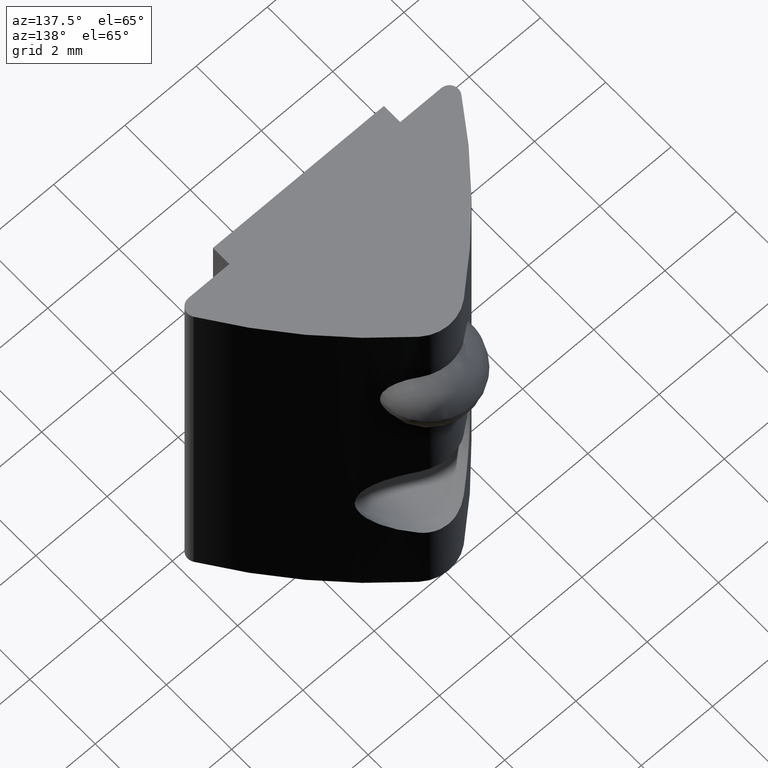
[diagram: clean part render]
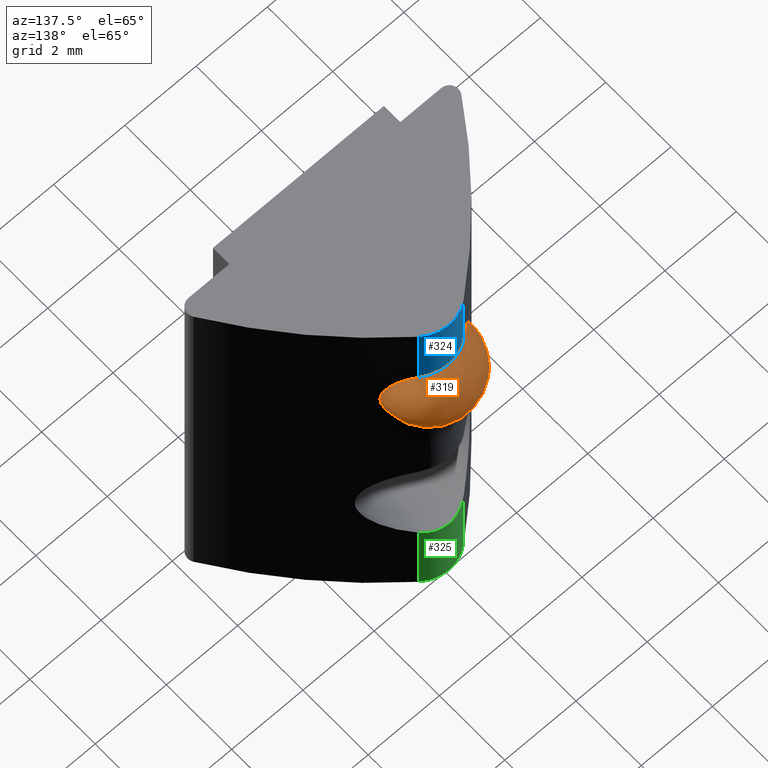
[diagram: same view with three faces highlighted in distinct colors, each labeled with its STEP entity id]
A machine part, auxiliary view with three faces highlighted in distinct colors.
Their STEP definitions:

[orange] entity #319 — the highlighted spherical surface has radius 1.25 mm.
#79=FACE_BOUND('',#109,.T.);
#81=B_SPLINE_CURVE_WITH_KNOTS('',3,(#476,#477,#478,#479,#480,#481,#482,
#483,#484,#485,#486,#487,#488,#489,#490,#491,#492,#493),.UNSPECIFIED.,.F.,
 .F.,(4,2,2,2,2,2,2,2,4),(0.182968456243765,0.210851468543244,0.243239566367713,
0.279251537174953,0.315263507982192,0.351275478789432,0.387287449596671,
0.41967554742114,0.447558559720619),.UNSPECIFIED.);
#82=B_SPLINE_CURVE_WITH_KNOTS('',3,(#495,#496,#497,#498,#499,#500,#501,
#502,#503,#504,#505,#506,#507,#508),.UNSPECIFIED.,.F.,.F.,(4,2,2,2,2,2,
4),(0.177323095739884,0.193497467225048,0.218225435560753,0.242953403896458,
0.267681372232164,0.292409340567869,0.308583712053033),.UNSPECIFIED.);
#83=B_SPLINE_CURVE_WITH_KNOTS('',3,(#510,#511,#512,#513,#514,#515,#516,
#517,#518,#519,#520,#521,#522,#523,#524,#525,#526,#527,#528),
 .UNSPECIFIED.,.F.,.F.,(4,2,2,2,3,2,2,2,4),(-0.132295051738427,-0.104412039438947,
-0.0720239416144781,-0.0360119708072391,0.,0.036011970807239,0.0720239416144781,
0.104412039438947,0.132295051738427),.UNSPECIFIED.);
#84=B_SPLINE_CURVE_WITH_KNOTS('',3,(#529,#530,#531,#532,#533,#534,#535,
#536,#537,#538,#539,#540,#541,#542),.UNSPECIFIED.,.F.,.F.,(4,2,2,2,2,2,
4),(0.6632299035328,0.679404275017964,0.704132243353669,0.728860211689375,
0.75358818002508,0.778316148360785,0.794490519845949),.UNSPECIFIED.);
#92=FACE_OUTER_BOUND('',#108,.T.);
#108=EDGE_LOOP('',(#220,#221));
#109=EDGE_LOOP('',(#222,#223,#224,#225));
#126=CIRCLE('',#359,1.25);
#138=VERTEX_POINT('',#471);
#139=VERTEX_POINT('',#472);
#140=VERTEX_POINT('',#474);
#141=VERTEX_POINT('',#475);
#142=VERTEX_POINT('',#494);
#143=VERTEX_POINT('',#509);
#172=EDGE_CURVE('',#138,#139,#126,.T.);
#173=EDGE_CURVE('',#140,#141,#81,.T.);
#174=EDGE_CURVE('',#142,#140,#82,.T.);
#175=EDGE_CURVE('',#143,#142,#83,.T.);
#176=EDGE_CURVE('',#141,#143,#84,.T.);
#220=ORIENTED_EDGE('',*,*,#172,.T.);
#221=ORIENTED_EDGE('',*,*,#172,.F.);
#222=ORIENTED_EDGE('',*,*,#173,.F.);
#223=ORIENTED_EDGE('',*,*,#174,.F.);
#224=ORIENTED_EDGE('',*,*,#175,.F.);
#225=ORIENTED_EDGE('',*,*,#176,.F.);
#316=SPHERICAL_SURFACE('',#358,1.25);
#319=ADVANCED_FACE('',(#92,#79),#316,.T.);
#358=AXIS2_PLACEMENT_3D('',#470,#388,#389);
#359=AXIS2_PLACEMENT_3D('',#473,#390,#391);
#388=DIRECTION('center_axis',(1.,0.,0.));
#389=DIRECTION('ref_axis',(0.,-1.,0.));
#390=DIRECTION('center_axis',(0.,0.,1.));
#391=DIRECTION('ref_axis',(0.,1.,0.));
#470=CARTESIAN_POINT('Origin',(0.,3.5,9.));
#471=CARTESIAN_POINT('',(1.25,3.5,9.));
#472=CARTESIAN_POINT('',(-1.25,3.5,9.));
#473=CARTESIAN_POINT('Origin',(0.,3.5,9.));
#474=CARTESIAN_POINT('',(0.631143439405981,3.87566613880895,7.98854910596354));
#475=CARTESIAN_POINT('',(0.631143439405981,3.87566613880895,10.0114508940365));
#476=CARTESIAN_POINT('Ctrl Pts',(0.631143439405981,3.87566613880895,7.98854910596354));
#477=CARTESIAN_POINT('Ctrl Pts',(0.706906064844613,3.81401966282485,8.0129285301541));
#478=CARTESIAN_POINT('Ctrl Pts',(0.779525979046031,3.75362472286554,8.05176362716048));
#479=CARTESIAN_POINT('Ctrl Pts',(0.912982315815267,3.64093699186633,8.15102680410987));
#480=CARTESIAN_POINT('Ctrl Pts',(0.989434669996827,3.57495232534953,8.23217409867822));
#481=CARTESIAN_POINT('Ctrl Pts',(1.10392184773954,3.47473870952647,8.40197993384423));
#482=CARTESIAN_POINT('Ctrl Pts',(1.15588616264958,3.42835364541138,8.51245620052577));
#483=CARTESIAN_POINT('Ctrl Pts',(1.22448257068173,3.36670895791017,8.75144234123317));
#484=CARTESIAN_POINT('Ctrl Pts',(1.24115006546628,3.3515193110433,8.8799600973092));
#485=CARTESIAN_POINT('Ctrl Pts',(1.24115006546628,3.3515193110433,9.1200399026908));
#486=CARTESIAN_POINT('Ctrl Pts',(1.22448257068173,3.36670895791017,9.24855765876683));
#487=CARTESIAN_POINT('Ctrl Pts',(1.15588616264958,3.42835364541138,9.48754379947423));
#488=CARTESIAN_POINT('Ctrl Pts',(1.10392184773954,3.47473870952647,9.59802006615577));
#489=CARTESIAN_POINT('Ctrl Pts',(0.989434669996827,3.57495232534953,9.76782590132178));
#490=CARTESIAN_POINT('Ctrl Pts',(0.912982315815267,3.64093699186633,9.84897319589013));
#491=CARTESIAN_POINT('Ctrl Pts',(0.779525979046031,3.75362472286554,9.94823637283952));
#492=CARTESIAN_POINT('Ctrl Pts',(0.706906064844613,3.81401966282485,9.9870714698459));
#493=CARTESIAN_POINT('Ctrl Pts',(0.631143439405981,3.87566613880895,10.0114508940365));
#494=CARTESIAN_POINT('',(-0.631143439405981,3.87566613880895,7.98854910596354));
#495=CARTESIAN_POINT('Ctrl Pts',(-0.631143439405981,3.87566613880895,7.98854910596353));
#496=CARTESIAN_POINT('Ctrl Pts',(-0.587727022182322,3.91099317646371,7.97457826946992));
#497=CARTESIAN_POINT('Ctrl Pts',(-0.541723086428686,3.94222462984948,7.96251252758535));
#498=CARTESIAN_POINT('Ctrl Pts',(-0.425378959386678,4.00863185926687,7.93715452175411));
#499=CARTESIAN_POINT('Ctrl Pts',(-0.343240498544282,4.04342928759003,7.92421447322531));
#500=CARTESIAN_POINT('Ctrl Pts',(-0.171766408803164,4.08912546852542,7.90735577006466));
#501=CARTESIAN_POINT('Ctrl Pts',(-0.0824265611190177,4.1,7.90341439002693));
#502=CARTESIAN_POINT('Ctrl Pts',(0.0824265611190179,4.1,7.90341439002693));
#503=CARTESIAN_POINT('Ctrl Pts',(0.171766408803164,4.08912546852542,7.90735577006466));
#504=CARTESIAN_POINT('Ctrl Pts',(0.343240498544282,4.04342928759003,7.92421447322531));
#505=CARTESIAN_POINT('Ctrl Pts',(0.425378959386678,4.00863185926687,7.93715452175411));
#506=CARTESIAN_POINT('Ctrl Pts',(0.541723086428685,3.94222462984948,7.96251252758535));
#507=CARTESIAN_POINT('Ctrl Pts',(0.587727022182322,3.91099317646371,7.97457826946992));
#508=CARTESIAN_POINT('Ctrl Pts',(0.631143439405981,3.87566613880895,7.98854910596353));
#509=CARTESIAN_POINT('',(-0.631143439405981,3.87566613880895,10.0114508940365));
#510=CARTESIAN_POINT('Ctrl Pts',(-0.631143439405981,3.87566613880895,10.0114508940365));
#511=CARTESIAN_POINT('Ctrl Pts',(-0.706906064844615,3.81401966282485,9.9870714698459));
#512=CARTESIAN_POINT('Ctrl Pts',(-0.779525979046037,3.75362472286554,9.94823637283951));
#513=CARTESIAN_POINT('Ctrl Pts',(-0.912982315815274,3.64093699186633,9.84897319589012));
#514=CARTESIAN_POINT('Ctrl Pts',(-0.989434669996833,3.57495232534953,9.76782590132177));
#515=CARTESIAN_POINT('Ctrl Pts',(-1.10392184773954,3.47473870952647,9.59802006615577));
#516=CARTESIAN_POINT('Ctrl Pts',(-1.15588616264958,3.42835364541137,9.48754379947423));
#517=CARTESIAN_POINT('Ctrl Pts',(-1.22448257068173,3.36670895791016,9.24855765876683));
#518=CARTESIAN_POINT('Ctrl Pts',(-1.24115006546628,3.3515193110433,9.1200399026908));
#519=CARTESIAN_POINT('Ctrl Pts',(-1.24115006546628,3.3515193110433,9.));
#520=CARTESIAN_POINT('Ctrl Pts',(-1.24115006546628,3.3515193110433,8.8799600973092));
#521=CARTESIAN_POINT('Ctrl Pts',(-1.22448257068173,3.36670895791016,8.75144234123317));
#522=CARTESIAN_POINT('Ctrl Pts',(-1.15588616264958,3.42835364541137,8.51245620052577));
#523=CARTESIAN_POINT('Ctrl Pts',(-1.10392184773954,3.47473870952647,8.40197993384423));
#524=CARTESIAN_POINT('Ctrl Pts',(-0.989434669996833,3.57495232534953,8.23217409867823));
#525=CARTESIAN_POINT('Ctrl Pts',(-0.912982315815274,3.64093699186633,8.15102680410988));
#526=CARTESIAN_POINT('Ctrl Pts',(-0.779525979046037,3.75362472286554,8.05176362716048));
#527=CARTESIAN_POINT('Ctrl Pts',(-0.706906064844615,3.81401966282485,8.0129285301541));
#528=CARTESIAN_POINT('Ctrl Pts',(-0.631143439405981,3.87566613880895,7.98854910596354));
#529=CARTESIAN_POINT('Ctrl Pts',(0.631143439405981,3.87566613880895,10.0114508940365));
#530=CARTESIAN_POINT('Ctrl Pts',(0.587727022182323,3.91099317646371,10.0254217305301));
#531=CARTESIAN_POINT('Ctrl Pts',(0.541723086428686,3.94222462984948,10.0374874724146));
#532=CARTESIAN_POINT('Ctrl Pts',(0.425378959386678,4.00863185926687,10.0628454782459));
#533=CARTESIAN_POINT('Ctrl Pts',(0.343240498544283,4.04342928759003,10.0757855267747));
#534=CARTESIAN_POINT('Ctrl Pts',(0.171766408803164,4.08912546852542,10.0926442299353));
#535=CARTESIAN_POINT('Ctrl Pts',(0.0824265611190179,4.1,10.0965856099731));
#536=CARTESIAN_POINT('Ctrl Pts',(-0.0824265611190176,4.1,10.0965856099731));
#537=CARTESIAN_POINT('Ctrl Pts',(-0.171766408803164,4.08912546852542,10.0926442299353));
#538=CARTESIAN_POINT('Ctrl Pts',(-0.343240498544282,4.04342928759003,10.0757855267747));
#539=CARTESIAN_POINT('Ctrl Pts',(-0.425378959386678,4.00863185926687,10.0628454782459));
#540=CARTESIAN_POINT('Ctrl Pts',(-0.541723086428686,3.94222462984948,10.0374874724146));
#541=CARTESIAN_POINT('Ctrl Pts',(-0.587727022182323,3.91099317646371,10.0254217305301));
#542=CARTESIAN_POINT('Ctrl Pts',(-0.631143439405981,3.87566613880895,10.0114508940365));

[blue] entity #324 — the highlighted cylindrical surface (partial cylindrical patch) has radius 1 mm, axis along (0, 0, 1).
#24=LINE('',#574,#49);
#27=LINE('',#632,#52);
#49=VECTOR('',#401,10.);
#52=VECTOR('',#412,10.);
#75=CYLINDRICAL_SURFACE('',#369,1.);
#84=B_SPLINE_CURVE_WITH_KNOTS('',3,(#529,#530,#531,#532,#533,#534,#535,
#536,#537,#538,#539,#540,#541,#542),.UNSPECIFIED.,.F.,.F.,(4,2,2,2,2,2,
4),(0.6632299035328,0.679404275017964,0.704132243353669,0.728860211689375,
0.75358818002508,0.778316148360785,0.794490519845949),.UNSPECIFIED.);
#97=FACE_OUTER_BOUND('',#114,.T.);
#114=EDGE_LOOP('',(#258,#259,#260,#261));
#132=CIRCLE('',#370,1.);
#141=VERTEX_POINT('',#475);
#143=VERTEX_POINT('',#509);
#149=VERTEX_POINT('',#572);
#156=VERTEX_POINT('',#631);
#176=EDGE_CURVE('',#141,#143,#84,.T.);
#183=EDGE_CURVE('',#143,#149,#24,.T.);
#193=EDGE_CURVE('',#141,#156,#27,.T.);
#198=EDGE_CURVE('',#156,#149,#132,.T.);
#258=ORIENTED_EDGE('',*,*,#176,.T.);
#259=ORIENTED_EDGE('',*,*,#183,.T.);
#260=ORIENTED_EDGE('',*,*,#198,.F.);
#261=ORIENTED_EDGE('',*,*,#193,.F.);
#324=ADVANCED_FACE('',(#97),#75,.T.);
#369=AXIS2_PLACEMENT_3D('',#640,#419,#420);
#370=AXIS2_PLACEMENT_3D('',#641,#421,#422);
#401=DIRECTION('',(0.,0.,1.));
#412=DIRECTION('',(0.,0.,1.));
#419=DIRECTION('center_axis',(0.,0.,1.));
#420=DIRECTION('ref_axis',(-0.63114343940598,-0.775666138808953,0.));
#421=DIRECTION('center_axis',(0.,0.,1.));
#422=DIRECTION('ref_axis',(-0.63114343940598,-0.775666138808953,0.));
#475=CARTESIAN_POINT('',(0.631143439405981,3.87566613880895,10.0114508940365));
#509=CARTESIAN_POINT('',(-0.631143439405981,3.87566613880895,10.0114508940365));
#529=CARTESIAN_POINT('Ctrl Pts',(0.631143439405981,3.87566613880895,10.0114508940365));
#530=CARTESIAN_POINT('Ctrl Pts',(0.587727022182323,3.91099317646371,10.0254217305301));
#531=CARTESIAN_POINT('Ctrl Pts',(0.541723086428686,3.94222462984948,10.0374874724146));
#532=CARTESIAN_POINT('Ctrl Pts',(0.425378959386678,4.00863185926687,10.0628454782459));
#533=CARTESIAN_POINT('Ctrl Pts',(0.343240498544283,4.04342928759003,10.0757855267747));
#534=CARTESIAN_POINT('Ctrl Pts',(0.171766408803164,4.08912546852542,10.0926442299353));
#535=CARTESIAN_POINT('Ctrl Pts',(0.0824265611190179,4.1,10.0965856099731));
#536=CARTESIAN_POINT('Ctrl Pts',(-0.0824265611190176,4.1,10.0965856099731));
#537=CARTESIAN_POINT('Ctrl Pts',(-0.171766408803164,4.08912546852542,10.0926442299353));
#538=CARTESIAN_POINT('Ctrl Pts',(-0.343240498544282,4.04342928759003,10.0757855267747));
#539=CARTESIAN_POINT('Ctrl Pts',(-0.425378959386678,4.00863185926687,10.0628454782459));
#540=CARTESIAN_POINT('Ctrl Pts',(-0.541723086428686,3.94222462984948,10.0374874724146));
#541=CARTESIAN_POINT('Ctrl Pts',(-0.587727022182323,3.91099317646371,10.0254217305301));
#542=CARTESIAN_POINT('Ctrl Pts',(-0.631143439405981,3.87566613880895,10.0114508940365));
#572=CARTESIAN_POINT('',(-0.631143439405981,3.87566613880895,12.));
#574=CARTESIAN_POINT('',(-0.631143439405981,3.87566613880895,0.));
#631=CARTESIAN_POINT('',(0.631143439405981,3.87566613880895,12.));
#632=CARTESIAN_POINT('',(0.631143439405981,3.87566613880895,0.));
#640=CARTESIAN_POINT('Origin',(0.,3.1,0.));
#641=CARTESIAN_POINT('Origin',(0.,3.1,12.));

[green] entity #325 — the highlighted cylindrical surface (partial cylindrical patch) has radius 1 mm, axis along (0, 0, 1).
#22=LINE('',#567,#47);
#29=LINE('',#639,#54);
#47=VECTOR('',#395,10.);
#54=VECTOR('',#418,10.);
#76=CYLINDRICAL_SURFACE('',#371,1.);
#90=B_SPLINE_CURVE_WITH_KNOTS('',3,(#618,#619,#620,#621,#622,#623),
 .UNSPECIFIED.,.F.,.F.,(4,2,4),(0.467370269195606,0.506173086440038,0.53436145946202),
 .UNSPECIFIED.);
#91=B_SPLINE_CURVE_WITH_KNOTS('',3,(#624,#625,#626,#627,#628,#629),
 .UNSPECIFIED.,.F.,.F.,(4,2,4),(0.400379078929193,0.428567451951175,0.467370269195606),
 .UNSPECIFIED.);
#98=FACE_OUTER_BOUND('',#115,.T.);
#115=EDGE_LOOP('',(#262,#263,#264,#265,#266));
#133=CIRCLE('',#372,1.);
#145=VERTEX_POINT('',#546);
#146=VERTEX_POINT('',#566);
#154=VERTEX_POINT('',#606);
#155=VERTEX_POINT('',#617);
#159=VERTEX_POINT('',#637);
#179=EDGE_CURVE('',#146,#145,#22,.T.);
#191=EDGE_CURVE('',#155,#154,#90,.T.);
#192=EDGE_CURVE('',#145,#155,#91,.T.);
#197=EDGE_CURVE('',#159,#154,#29,.T.);
#199=EDGE_CURVE('',#146,#159,#133,.T.);
#262=ORIENTED_EDGE('',*,*,#192,.T.);
#263=ORIENTED_EDGE('',*,*,#191,.T.);
#264=ORIENTED_EDGE('',*,*,#197,.F.);
#265=ORIENTED_EDGE('',*,*,#199,.F.);
#266=ORIENTED_EDGE('',*,*,#179,.T.);
#325=ADVANCED_FACE('',(#98),#76,.T.);
#371=AXIS2_PLACEMENT_3D('',#642,#423,#424);
#372=AXIS2_PLACEMENT_3D('',#643,#425,#426);
#395=DIRECTION('',(0.,0.,1.));
#418=DIRECTION('',(0.,0.,1.));
#423=DIRECTION('center_axis',(0.,0.,1.));
#424=DIRECTION('ref_axis',(-0.63114343940598,-0.775666138808953,0.));
#425=DIRECTION('center_axis',(0.,0.,-1.));
#426=DIRECTION('ref_axis',(-0.63114343940598,-0.775666138808953,0.));
#546=CARTESIAN_POINT('',(-0.631143439405981,3.87566613880895,2.40691629206706));
#566=CARTESIAN_POINT('',(-0.631143439405981,3.87566613880895,0.));
#567=CARTESIAN_POINT('',(-0.631143439405981,3.87566613880895,0.));
#606=CARTESIAN_POINT('',(0.631143439405981,3.87566613880895,2.40691629206706));
#617=CARTESIAN_POINT('',(0.,4.1,2.279));
#618=CARTESIAN_POINT('Ctrl Pts',(1.04083408558608E-16,4.1,2.279));
#619=CARTESIAN_POINT('Ctrl Pts',(0.129342724148104,4.1,2.279));
#620=CARTESIAN_POINT('Ctrl Pts',(0.264967094338513,4.07341093913773,2.29581235875653));
#621=CARTESIAN_POINT('Ctrl Pts',(0.476906400364673,3.98426258594251,2.34802164018412));
#622=CARTESIAN_POINT('Ctrl Pts',(0.559633702500536,3.93385212765568,2.37668831418362));
#623=CARTESIAN_POINT('Ctrl Pts',(0.63114343940598,3.87566613880895,2.40691629206706));
#624=CARTESIAN_POINT('Ctrl Pts',(-0.63114343940598,3.87566613880895,2.40691629206706));
#625=CARTESIAN_POINT('Ctrl Pts',(-0.559633702500536,3.93385212765568,2.37668831418362));
#626=CARTESIAN_POINT('Ctrl Pts',(-0.476906400364672,3.98426258594251,2.34802164018412));
#627=CARTESIAN_POINT('Ctrl Pts',(-0.264967094338512,4.07341093913773,2.29581235875653));
#628=CARTESIAN_POINT('Ctrl Pts',(-0.129342724148104,4.1,2.279));
#629=CARTESIAN_POINT('Ctrl Pts',(1.38777878078145E-16,4.1,2.279));
#637=CARTESIAN_POINT('',(0.631143439405981,3.87566613880895,0.));
#639=CARTESIAN_POINT('',(0.631143439405981,3.87566613880895,0.));
#642=CARTESIAN_POINT('Origin',(0.,3.1,0.));
#643=CARTESIAN_POINT('Origin',(0.,3.1,0.));